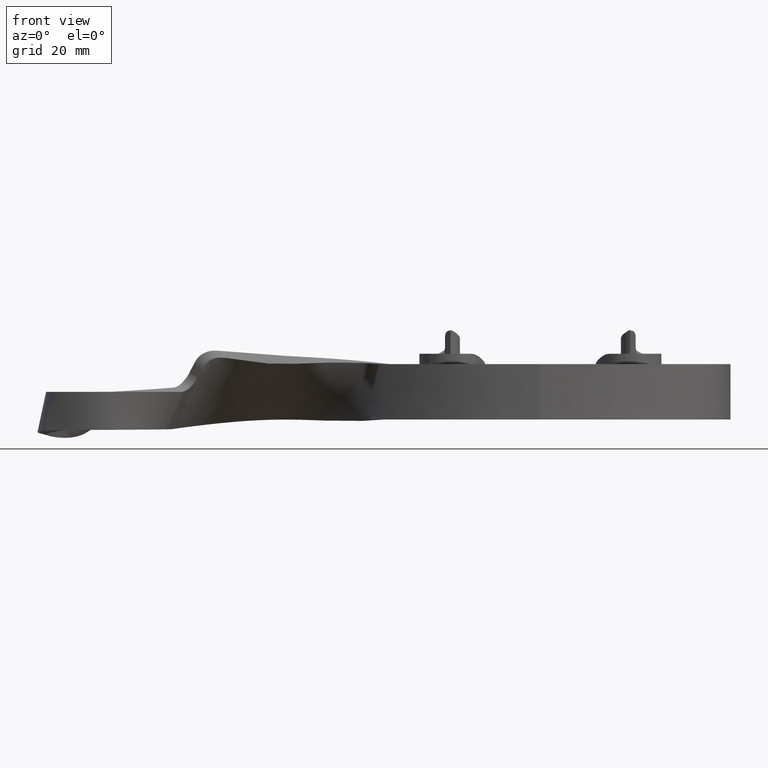
[diagram: clean part render]
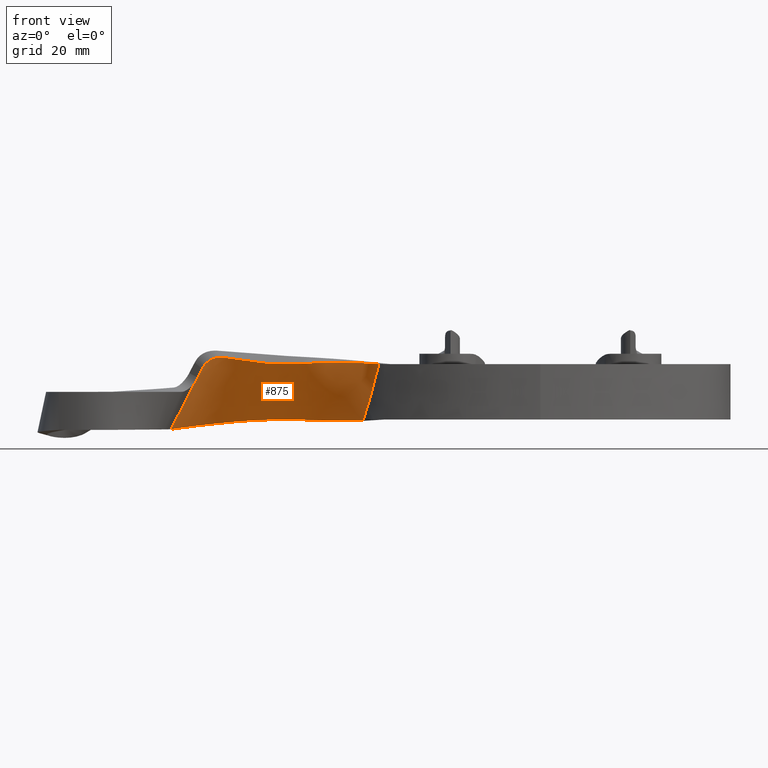
[diagram: same view with one face highlighted and labeled with its STEP entity id]
A machine part, front view. The second image highlights one B-rep face of the part: STEP entity #875.
In plain terms, the highlighted face is a freeform B-spline surface patch.
Its self-contained STEP definition (entity closure, byte-faithful):
#106 = ORIENTED_EDGE ( 'NONE', *, *, #15743, .T. ) ;
#402 = CARTESIAN_POINT ( 'NONE',  ( -106.8419929930820587, -12.87821829489875469, -10.82531754730547924 ) ) ;
#787 = CARTESIAN_POINT ( 'NONE',  ( -106.8419929930820587, -12.87821829489875469, -10.82531754730547924 ) ) ;
#832 = CARTESIAN_POINT ( 'NONE',  ( -49.19411402448093185, -11.02608416531001900, -1.584789201997998331 ) ) ;
#873 = CARTESIAN_POINT ( 'NONE',  ( -56.34603692971393230, -3.569415605905404743, -8.759438543989984893 ) ) ;
#875 = ADVANCED_FACE ( 'NONE', ( #2933 ), #1165, .T. ) ;
#913 = CARTESIAN_POINT ( 'NONE',  ( -85.54170045274017298, -14.78734809001354122, 8.809746134288802821 ) ) ;
#946 = CARTESIAN_POINT ( 'NONE',  ( -79.26689474528411949, 22.23739565170323118, -7.277835872573934495 ) ) ;
#1165 = B_SPLINE_SURFACE_WITH_KNOTS ( 'NONE', 3, 3, ( 
 ( #14734, #3447, #13482, #946, #7222, #13424 ),
 ( #8428, #5908, #14682, #7167, #1561, #15351 ),
 ( #11574, #12835, #6588, #9110, #2841, #11624 ),
 ( #12891, #5382, #1512, #10331, #10591, #14183 ) ),
 .UNSPECIFIED., .F., .F., .F.,
 ( 4, 4 ),
 ( 4, 1, 1, 4 ),
 ( 0.000000000000000000, 1.000000000000000000 ),
 ( 0.000000000000000000, 0.2476109074096188023, 0.5351375507135722742, 1.000000000000000000 ),
 .UNSPECIFIED. ) ;
#1512 = CARTESIAN_POINT ( 'NONE',  ( -61.81473840871116465, -5.049523883687489167, 8.755020436653264682 ) ) ;
#1538 = CARTESIAN_POINT ( 'NONE',  ( -97.84205842926860441, -17.40737814837681086, 6.625651863986369072 ) ) ;
#1561 = CARTESIAN_POINT ( 'NONE',  ( -94.71290694102017937, -4.491012366747566986, -3.201969853322090387 ) ) ;
#1584 = EDGE_CURVE ( 'NONE', #4243, #5330, #3822, .T. ) ;
#1651 = LINE ( 'NONE', #402, #13055 ) ;
#1664 = DIRECTION ( 'NONE',  ( 0.4466326071041515910, -0.2247650201240159185, 0.8660254037844382635 ) ) ;
#1762 = ORIENTED_EDGE ( 'NONE', *, *, #15391, .T. ) ;
#1914 = CARTESIAN_POINT ( 'NONE',  ( -94.81643032052731712, -17.54800486673891768, 9.497863232406125178 ) ) ;
#2157 = CARTESIAN_POINT ( 'NONE',  ( -45.00000000000002842, -14.99999999999998224, 8.000000000000001776 ) ) ;
#2257 = CARTESIAN_POINT ( 'NONE',  ( -97.04439986814882957, -17.64335708346889930, 7.864753922354162263 ) ) ;
#2699 = VERTEX_POINT ( 'NONE', #2157 ) ;
#2841 = CARTESIAN_POINT ( 'NONE',  ( -91.87141453252840506, -10.12018816723797521, 3.110932952253859796 ) ) ;
#2852 = ORIENTED_EDGE ( 'NONE', *, *, #4504, .F. ) ;
#2933 = FACE_OUTER_BOUND ( 'NONE', #12240, .T. ) ;
#3188 = CARTESIAN_POINT ( 'NONE',  ( -94.98921695799491260, -17.57143652117139254, 9.425776067659560553 ) ) ;
#3425 = CARTESIAN_POINT ( 'NONE',  ( -46.95748006700399202, -12.63005216541565368, -7.999999999999996447 ) ) ;
#3447 = CARTESIAN_POINT ( 'NONE',  ( -48.56834442078753966, -10.48313548729744582, -8.300612674778323097 ) ) ;
#3501 = CARTESIAN_POINT ( 'NONE',  ( -46.73427982504128408, -13.57315355241171062, 8.000000000000001776 ) ) ;
#3506 = B_SPLINE_CURVE_WITH_KNOTS ( 'NONE', 3,
 ( #4449, #12143, #11915, #4397, #13166, #5713, #5656, #1914, #3188, #15750, #7408, #16131, #8627, #6050, #2257, #10993, #8577, #11046 ),
 .UNSPECIFIED., .F., .F.,
 ( 4, 2, 2, 2, 2, 2, 2, 2, 4 ),
 ( 0.000000000000000000, 0.002219420207872324548, 0.003329130311808467958, 0.004438840415744611800, 0.004993695467712701286, 0.005548550519680791639, 0.006658260623616935915, 0.007767970727553080192, 0.008877680831489227070 ),
 .UNSPECIFIED. ) ;
#3610 = LINE ( 'NONE', #787, #4599 ) ;
#3822 = B_SPLINE_CURVE_WITH_KNOTS ( 'NONE', 3,
 ( #12150, #5892, #873, #7153, #15922, #14611 ),
 .UNSPECIFIED., .F., .F.,
 ( 4, 1, 1, 4 ),
 ( 0.000000000000000000, 0.2476109074096188023, 0.5351375507135722742, 1.000000000000000000 ),
 .UNSPECIFIED. ) ;
#4243 = VERTEX_POINT ( 'NONE', #7198 ) ;
#4268 = EDGE_CURVE ( 'NONE', #4243, #11943, #10512, .T. ) ;
#4397 = CARTESIAN_POINT ( 'NONE',  ( -92.85171769861803170, -17.18766960067788219, 9.928377011803998897 ) ) ;
#4449 = CARTESIAN_POINT ( 'NONE',  ( -90.36614556223487682, -16.48433432270759980, 9.740090867380661876 ) ) ;
#4504 = EDGE_CURVE ( 'NONE', #10463, #6565, #3610, .T. ) ;
#4575 = B_SPLINE_CURVE_WITH_KNOTS ( 'NONE', 3,
 ( #12319, #13676, #7529, #9970 ),
 .UNSPECIFIED., .F., .F.,
 ( 4, 4 ),
 ( 0.01022765366754078108, 0.01244904863294275799 ),
 .UNSPECIFIED. ) ;
#4599 = VECTOR ( 'NONE', #8273, 1000.000000000000000 ) ;
#4987 = ORIENTED_EDGE ( 'NONE', *, *, #8912, .T. ) ;
#5034 = ORIENTED_EDGE ( 'NONE', *, *, #6376, .T. ) ;
#5087 = CARTESIAN_POINT ( 'NONE',  ( -51.21450660131823440, -8.218670951051755935, -7.999999999999998224 ) ) ;
#5330 = VERTEX_POINT ( 'NONE', #14612 ) ;
#5382 = CARTESIAN_POINT ( 'NONE',  ( -49.87567751542702865, -10.74846068092417894, 8.299546776835393658 ) ) ;
#5401 = CARTESIAN_POINT ( 'NONE',  ( -46.73427982504128408, -13.57315355241171062, 8.000000000000001776 ) ) ;
#5407 = VERTEX_POINT ( 'NONE', #7154 ) ;
#5656 = CARTESIAN_POINT ( 'NONE',  ( -94.29558301071881488, -17.47037414735437011, 9.685859223409822860 ) ) ;
#5713 = CARTESIAN_POINT ( 'NONE',  ( -93.94079375742775539, -17.40851521218855069, 9.775787561796995817 ) ) ;
#5850 = CARTESIAN_POINT ( 'NONE',  ( -50.79143243043421307, -8.899018446409671768, -6.775453237793956696 ) ) ;
#5892 = CARTESIAN_POINT ( 'NONE',  ( -48.56834442078753966, -10.48313548729744582, -8.300612674778323097 ) ) ;
#5908 = CARTESIAN_POINT ( 'NONE',  ( -49.00412211900070503, -10.57157721850635568, -2.767226190907082994 ) ) ;
#5943 = CARTESIAN_POINT ( 'NONE',  ( -51.21450660131823440, -8.218670951051755935, -7.999999999999998224 ) ) ;
#5962 = CARTESIAN_POINT ( 'NONE',  ( -51.21450660131823440, -8.218670951051755935, -7.999999999999998224 ) ) ;
#6050 = CARTESIAN_POINT ( 'NONE',  ( -96.79912180672769750, -17.66759154830451450, 8.146842436608807247 ) ) ;
#6105 = CARTESIAN_POINT ( 'NONE',  ( -49.04055391757942317, -10.38072235499039486, -7.999999999999996447 ) ) ;
#6147 = CARTESIAN_POINT ( 'NONE',  ( -61.81473840871116465, -5.049523883687489167, 8.755020436653264682 ) ) ;
#6376 = EDGE_CURVE ( 'NONE', #2699, #5407, #14029, .T. ) ;
#6565 = VERTEX_POINT ( 'NONE', #1538 ) ;
#6588 = CARTESIAN_POINT ( 'NONE',  ( -59.99183791571207536, -4.556154457760127841, 2.916867443105514379 ) ) ;
#7153 = CARTESIAN_POINT ( 'NONE',  ( -79.26689474528411949, 22.23739565170323118, -7.277835872573934495 ) ) ;
#7154 = CARTESIAN_POINT ( 'NONE',  ( -90.36614556223487682, -16.48433432270759980, 9.740090867380661876 ) ) ;
#7167 = CARTESIAN_POINT ( 'NONE',  ( -79.07528747351896925, 10.44792275769113132, -2.417379452595898037 ) ) ;
#7198 = CARTESIAN_POINT ( 'NONE',  ( -45.00000000000004263, -14.99999999999997513, -8.000000000000001776 ) ) ;
#7222 = CARTESIAN_POINT ( 'NONE',  ( -97.55439934951195369, 1.138163433742840569, -9.514872658898040569 ) ) ;
#7348 = CARTESIAN_POINT ( 'NONE',  ( -90.36614556223487682, -16.48433432270759980, 9.740090867380661876 ) ) ;
#7408 = CARTESIAN_POINT ( 'NONE',  ( -95.48721792264440467, -17.62835340101294079, 9.176257686734514252 ) ) ;
#7529 = CARTESIAN_POINT ( 'NONE',  ( -45.56443927917860748, -14.50781490755577963, 8.000000000000008882 ) ) ;
#8273 = DIRECTION ( 'NONE',  ( 0.4466326071041515910, -0.2247650201240159185, 0.8660254037844382635 ) ) ;
#8428 = CARTESIAN_POINT ( 'NONE',  ( -45.00000000000002842, -14.99999999999998224, -2.666666666666666963 ) ) ;
#8488 = CARTESIAN_POINT ( 'NONE',  ( -47.40103758842389681, -12.95657248883109069, 5.222505930622141079 ) ) ;
#8577 = CARTESIAN_POINT ( 'NONE',  ( -97.67414394073884409, -17.49188004723775336, 6.951239853795548207 ) ) ;
#8579 = CARTESIAN_POINT ( 'NONE',  ( -45.95451483641960522, -13.79176063656987239, -7.999999999999996447 ) ) ;
#8627 = CARTESIAN_POINT ( 'NONE',  ( -96.25264865822008176, -17.67973892646119438, 8.661093705270680232 ) ) ;
#8912 = EDGE_CURVE ( 'NONE', #10648, #2699, #4575, .T. ) ;
#9110 = CARTESIAN_POINT ( 'NONE',  ( -78.88368020175380479, -1.341550136320963427, 2.443076967382140641 ) ) ;
#9660 = CARTESIAN_POINT ( 'NONE',  ( -48.45254870279978121, -11.87558739580817679, 1.109066643105957928 ) ) ;
#9769 = CARTESIAN_POINT ( 'NONE',  ( -49.57919541479153480, -10.55657240684999643, -2.916022885512838503 ) ) ;
#9866 = ORIENTED_EDGE ( 'NONE', *, *, #14675, .F. ) ;
#9970 = CARTESIAN_POINT ( 'NONE',  ( -45.00000000000002842, -14.99999999999998224, 8.000000000000001776 ) ) ;
#10331 = CARTESIAN_POINT ( 'NONE',  ( -78.69207292998865455, -13.13102303033306306, 7.303533387360178430 ) ) ;
#10364 = ORIENTED_EDGE ( 'NONE', *, *, #1584, .F. ) ;
#10463 = VERTEX_POINT ( 'NONE', #14903 ) ;
#10512 = B_SPLINE_CURVE_WITH_KNOTS ( 'NONE', 3,
 ( #15976, #8579, #3425, #6105, #14772, #5943 ),
 .UNSPECIFIED., .F., .F.,
 ( 4, 2, 4 ),
 ( 0.000000000000000000, 0.004597832920002117504, 0.009195665840004235009 ),
 .UNSPECIFIED. ) ;
#10591 = CARTESIAN_POINT ( 'NONE',  ( -89.02992212403664496, -15.74936396772838521, 9.423835757829809978 ) ) ;
#10648 = VERTEX_POINT ( 'NONE', #5401 ) ;
#10993 = CARTESIAN_POINT ( 'NONE',  ( -97.48077353357473385, -17.55579922005803439, 7.268593338198158449 ) ) ;
#11046 = CARTESIAN_POINT ( 'NONE',  ( -97.84205842926860441, -17.40737814837681086, 6.625651863986369072 ) ) ;
#11197 = CARTESIAN_POINT ( 'NONE',  ( -49.87567751542702865, -10.74846068092417894, 8.299546776835393658 ) ) ;
#11574 = CARTESIAN_POINT ( 'NONE',  ( -45.00000000000002842, -14.99999999999998224, 2.666666666666666963 ) ) ;
#11624 = CARTESIAN_POINT ( 'NONE',  ( -99.39811620801286551, -16.62430196363235169, 3.608439182435155157 ) ) ;
#11915 = CARTESIAN_POINT ( 'NONE',  ( -91.76933017518796021, -16.92897017599755216, 9.950115816107299338 ) ) ;
#11943 = VERTEX_POINT ( 'NONE', #5087 ) ;
#12143 = CARTESIAN_POINT ( 'NONE',  ( -91.06022776243078454, -16.72847596207922294, 9.873937497330762980 ) ) ;
#12150 = CARTESIAN_POINT ( 'NONE',  ( -45.00000000000004263, -14.99999999999997513, -8.000000000000001776 ) ) ;
#12161 = CARTESIAN_POINT ( 'NONE',  ( -48.09545986699374254, -12.25610327858644411, 2.472562566571839593 ) ) ;
#12240 = EDGE_LOOP ( 'NONE', ( #5034, #106, #2852, #9866, #10364, #12289, #1762, #4987 ) ) ;
#12284 = B_SPLINE_CURVE_WITH_KNOTS ( 'NONE', 3,
 ( #5962, #5850, #14623, #9769, #832, #9660, #12161, #8488, #13421, #3501 ),
 .UNSPECIFIED., .F., .F.,
 ( 4, 2, 2, 2, 4 ),
 ( 1.947308813658644878E-15, 0.004371654494298288923, 0.008743308988594631487, 0.01311496348289097232, 0.01748661797718731314 ),
 .UNSPECIFIED. ) ;
#12289 = ORIENTED_EDGE ( 'NONE', *, *, #4268, .T. ) ;
#12319 = CARTESIAN_POINT ( 'NONE',  ( -46.73427982504128408, -13.57315355241171062, 8.000000000000001776 ) ) ;
#12835 = CARTESIAN_POINT ( 'NONE',  ( -49.43989981721387039, -10.66001894971526909, 2.766160292964155332 ) ) ;
#12891 = CARTESIAN_POINT ( 'NONE',  ( -45.00000000000002842, -14.99999999999998224, 8.000000000000001776 ) ) ;
#13055 = VECTOR ( 'NONE', #1664, 1000.000000000000000 ) ;
#13166 = CARTESIAN_POINT ( 'NONE',  ( -93.21890988295054115, -17.26727900423886197, 9.897302267462908532 ) ) ;
#13421 = CARTESIAN_POINT ( 'NONE',  ( -47.06394509679073934, -13.27606379022114247, 6.607992624362512224 ) ) ;
#13424 = CARTESIAN_POINT ( 'NONE',  ( -106.8419929930820587, -12.87821829489875469, -10.82531754730547924 ) ) ;
#13482 = CARTESIAN_POINT ( 'NONE',  ( -56.34603692971393230, -3.569415605905403854, -8.759438543989984893 ) ) ;
#13676 = CARTESIAN_POINT ( 'NONE',  ( -46.14255936947346015, -14.03182061413695969, 7.999999999999992895 ) ) ;
#14029 = B_SPLINE_CURVE_WITH_KNOTS ( 'NONE', 3,
 ( #14757, #11197, #6147, #16228, #913, #7348 ),
 .UNSPECIFIED., .F., .F.,
 ( 4, 1, 1, 4 ),
 ( 0.000000000000000000, 0.2476109074096188023, 0.5351375507135722742, 0.8754186054525827654 ),
 .UNSPECIFIED. ) ;
#14183 = CARTESIAN_POINT ( 'NONE',  ( -95.67617781547826894, -18.49734379799915374, 10.82531754730547213 ) ) ;
#14611 = CARTESIAN_POINT ( 'NONE',  ( -106.8419929930820871, -12.87821829489876890, -10.82531754730547924 ) ) ;
#14612 = CARTESIAN_POINT ( 'NONE',  ( -106.8419929930820871, -12.87821829489876890, -10.82531754730547924 ) ) ;
#14623 = CARTESIAN_POINT ( 'NONE',  ( -50.37721639868495771, -9.493705051872030509, -5.510624669928224861 ) ) ;
#14675 = EDGE_CURVE ( 'NONE', #5330, #10463, #1651, .T. ) ;
#14682 = CARTESIAN_POINT ( 'NONE',  ( -58.16893742271301448, -4.062785031832764737, -2.921285550442234147 ) ) ;
#14734 = CARTESIAN_POINT ( 'NONE',  ( -45.00000000000002842, -14.99999999999998224, -8.000000000000001776 ) ) ;
#14757 = CARTESIAN_POINT ( 'NONE',  ( -45.00000000000002842, -14.99999999999998224, 8.000000000000001776 ) ) ;
#14772 = CARTESIAN_POINT ( 'NONE',  ( -50.12001899861591170, -9.292482972413672826, -7.999999999999992895 ) ) ;
#14903 = CARTESIAN_POINT ( 'NONE',  ( -99.10442281618394134, -16.77210129595769317, 4.177913811474398109 ) ) ;
#15351 = CARTESIAN_POINT ( 'NONE',  ( -103.1200546005474621, -14.75126012926555319, -3.608439182435162262 ) ) ;
#15391 = EDGE_CURVE ( 'NONE', #11943, #10648, #12284, .T. ) ;
#15743 = EDGE_CURVE ( 'NONE', #5407, #6565, #3506, .T. ) ;
#15750 = CARTESIAN_POINT ( 'NONE',  ( -95.32473928201666524, -17.61160788132958288, 9.264832983392180310 ) ) ;
#15922 = CARTESIAN_POINT ( 'NONE',  ( -97.55439934951195369, 1.138163433742840569, -9.514872658898040569 ) ) ;
#15976 = CARTESIAN_POINT ( 'NONE',  ( -45.00000000000004263, -14.99999999999997513, -8.000000000000001776 ) ) ;
#16131 = CARTESIAN_POINT ( 'NONE',  ( -95.95899432040438626, -17.66776341473314815, 8.886423818541953068 ) ) ;
#16228 = CARTESIAN_POINT ( 'NONE',  ( -76.58947105908464437, -12.12421859661019496, 7.484361668128626910 ) ) ;